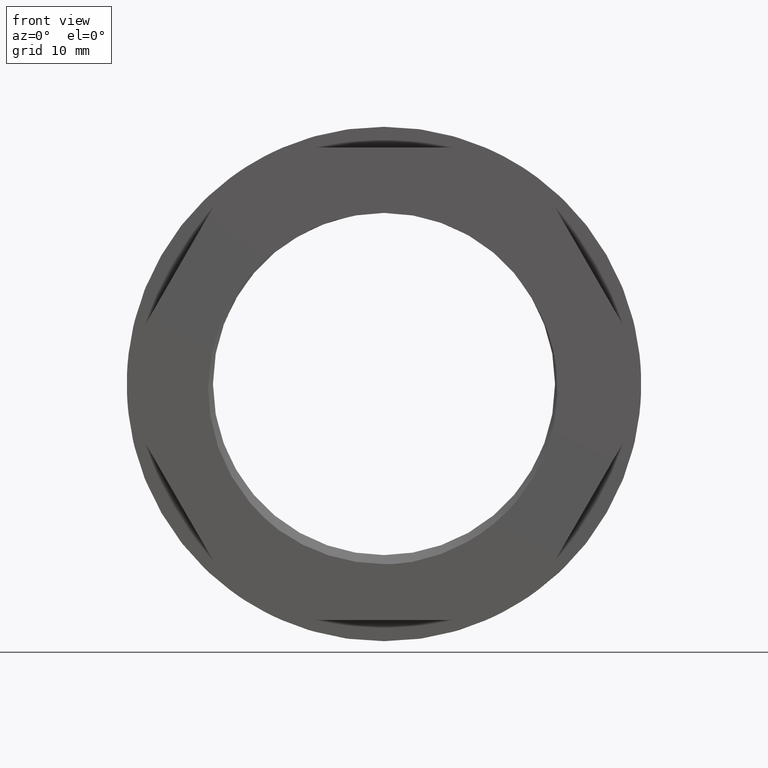
[diagram: clean part render]
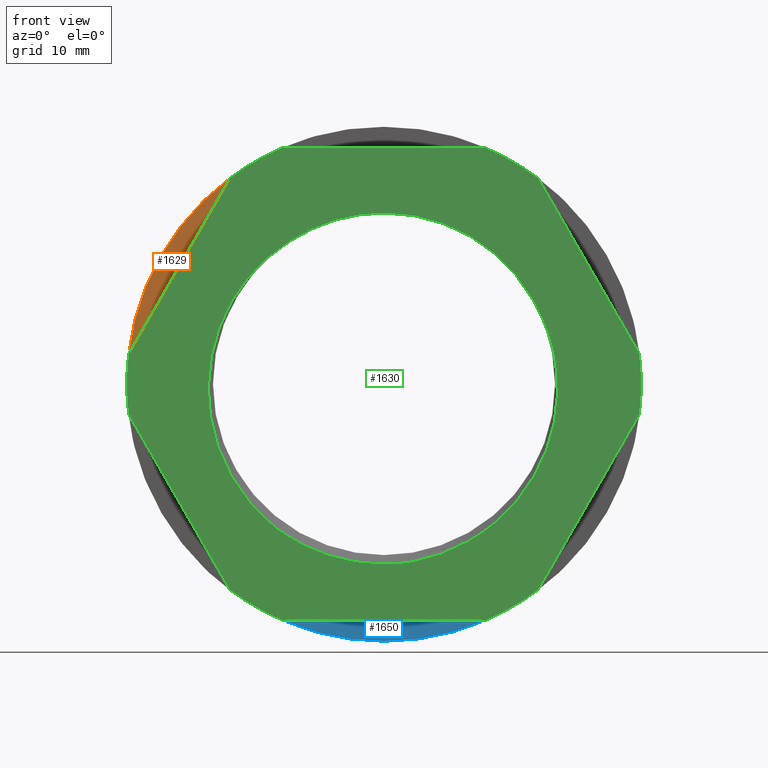
[diagram: same view with three faces highlighted in distinct colors, each labeled with its STEP entity id]
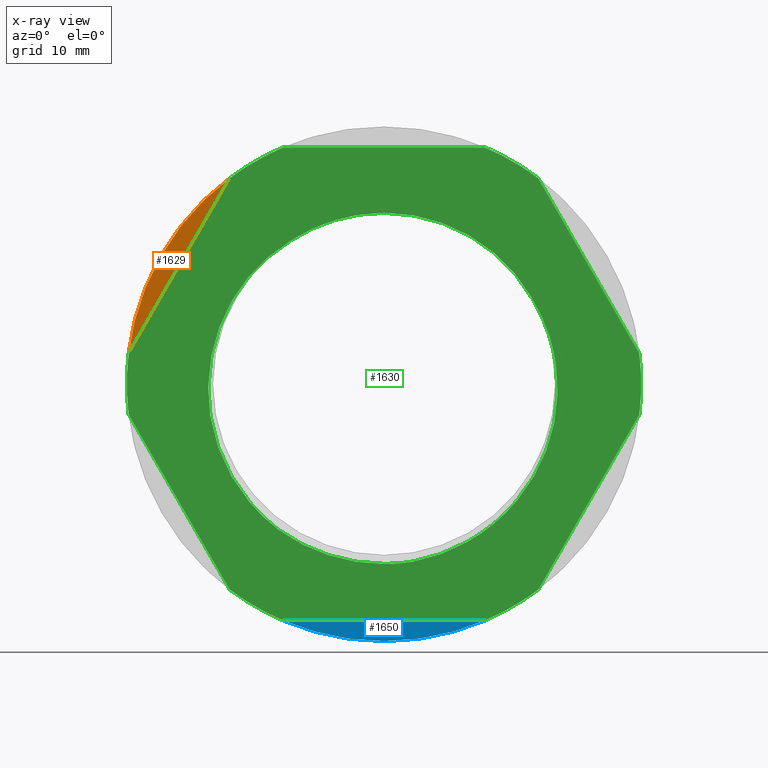
[diagram: x-ray of the same camera — body ghosted, the three highlighted faces saturated]
A machine part, front view with three faces highlighted in distinct colors.
The next image is the same camera in x-ray (body ghosted, the three faces saturated) — at least one of them is partly hidden behind the body in this view.
Their STEP definitions:

[orange] entity #1629 — the highlighted planar face has unit normal (0, 1, 0).
#19 = CARTESIAN_POINT ( 'NONE',  ( -22.68993497167885600, -16.80000000000000100, 102.6998798086183900 ) ) ;
#53 = CARTESIAN_POINT ( 'NONE',  ( -13.68313198726763200, -16.80000000000000100, 118.3001201913816400 ) ) ;
#295 = VERTEX_POINT ( 'NONE', #19 ) ;
#308 = VERTEX_POINT ( 'NONE', #53 ) ;
#337 = EDGE_LOOP ( 'NONE', ( #510, #542 ) ) ;
#510 = ORIENTED_EDGE ( 'NONE', *, *, #1580, .F. ) ;
#542 = ORIENTED_EDGE ( 'NONE', *, *, #1559, .F. ) ;
#753 = DIRECTION ( 'NONE',  ( 0.0000000000000000000, 0.0000000000000000000, 1.000000000000000000 ) ) ;
#767 = CARTESIAN_POINT ( 'NONE',  ( 0.0000000000000000000, -16.80000000000000100, 100.0000000000000000 ) ) ;
#775 = DIRECTION ( 'NONE',  ( 0.0000000000000000000, 1.000000000000000000, 0.0000000000000000000 ) ) ;
#1061 = CARTESIAN_POINT ( 'NONE',  ( 0.0000000000000000000, -16.80000000000000100, 79.04999999999999700 ) ) ;
#1063 = DIRECTION ( 'NONE',  ( 0.0000000000000000000, -0.0000000000000000000, 1.000000000000000000 ) ) ;
#1071 = FACE_OUTER_BOUND ( 'NONE', #337, .T. ) ;
#1077 = PLANE ( 'NONE',  #1685 ) ;
#1079 = DIRECTION ( 'NONE',  ( 0.0000000000000000000, 1.000000000000000000, 0.0000000000000000000 ) ) ;
#1398 = LINE ( 'NONE', #1402, #1784 ) ;
#1400 = DIRECTION ( 'NONE',  ( -0.4999999999999998900, 0.0000000000000000000, -0.8660254037844387100 ) ) ;
#1402 = CARTESIAN_POINT ( 'NONE',  ( -13.08782040654984200, -16.79999999999999700, 119.3312300955189900 ) ) ;
#1559 = EDGE_CURVE ( 'NONE', #308, #295, #1398, .T. ) ;
#1580 = EDGE_CURVE ( 'NONE', #295, #308, #1780, .T. ) ;
#1629 = ADVANCED_FACE ( 'NONE', ( #1071 ), #1077, .F. ) ;
#1685 = AXIS2_PLACEMENT_3D ( 'NONE', #1061, #1079, #1063 ) ;
#1780 = CIRCLE ( 'NONE', #1790, 22.85000000000000900 ) ;
#1784 = VECTOR ( 'NONE', #1400, 1000.000000000000000 ) ;
#1790 = AXIS2_PLACEMENT_3D ( 'NONE', #767, #775, #753 ) ;

[blue] entity #1650 — the highlighted planar face has unit normal (0, 1, 0).
#12 = CARTESIAN_POINT ( 'NONE',  ( -9.006802984411297800, -16.80000000000000100, 79.00000000000000000 ) ) ;
#79 = CARTESIAN_POINT ( 'NONE',  ( 9.006802984411297800, -16.80000000000000100, 79.00000000000000000 ) ) ;
#109 = CARTESIAN_POINT ( 'NONE',  ( 2.798317936051703500E-015, -16.80000000000000100, 77.14999999999999100 ) ) ;
#149 = DIRECTION ( 'NONE',  ( 1.000000000000000000, 0.0000000000000000000, 0.0000000000000000000 ) ) ;
#162 = LINE ( 'NONE', #187, #1764 ) ;
#187 = CARTESIAN_POINT ( 'NONE',  ( -10.19742614584680500, -16.79999999999999700, 79.00000000000000000 ) ) ;
#283 = VERTEX_POINT ( 'NONE', #12 ) ;
#325 = VERTEX_POINT ( 'NONE', #109 ) ;
#326 = VERTEX_POINT ( 'NONE', #79 ) ;
#345 = EDGE_LOOP ( 'NONE', ( #501, #480, #499 ) ) ;
#480 = ORIENTED_EDGE ( 'NONE', *, *, #1536, .F. ) ;
#499 = ORIENTED_EDGE ( 'NONE', *, *, #1588, .F. ) ;
#501 = ORIENTED_EDGE ( 'NONE', *, *, #1634, .F. ) ;
#811 = CARTESIAN_POINT ( 'NONE',  ( 0.0000000000000000000, -16.80000000000000100, 100.0000000000000000 ) ) ;
#813 = DIRECTION ( 'NONE',  ( 0.0000000000000000000, 0.0000000000000000000, 1.000000000000000000 ) ) ;
#822 = DIRECTION ( 'NONE',  ( 0.0000000000000000000, 1.000000000000000000, 0.0000000000000000000 ) ) ;
#1097 = CARTESIAN_POINT ( 'NONE',  ( 0.0000000000000000000, -16.80000000000000100, 100.0000000000000000 ) ) ;
#1111 = DIRECTION ( 'NONE',  ( 0.0000000000000000000, 0.0000000000000000000, 1.000000000000000000 ) ) ;
#1112 = DIRECTION ( 'NONE',  ( 0.0000000000000000000, 1.000000000000000000, 0.0000000000000000000 ) ) ;
#1181 = DIRECTION ( 'NONE',  ( 0.0000000000000000000, -0.0000000000000000000, 1.000000000000000000 ) ) ;
#1184 = FACE_OUTER_BOUND ( 'NONE', #345, .T. ) ;
#1190 = DIRECTION ( 'NONE',  ( 0.0000000000000000000, 1.000000000000000000, 0.0000000000000000000 ) ) ;
#1194 = CARTESIAN_POINT ( 'NONE',  ( 0.0000000000000000000, -16.80000000000000100, 79.04999999999999700 ) ) ;
#1195 = PLANE ( 'NONE',  #1710 ) ;
#1536 = EDGE_CURVE ( 'NONE', #283, #326, #162, .T. ) ;
#1588 = EDGE_CURVE ( 'NONE', #325, #283, #1797, .T. ) ;
#1634 = EDGE_CURVE ( 'NONE', #326, #325, #1691, .T. ) ;
#1650 = ADVANCED_FACE ( 'NONE', ( #1184 ), #1195, .F. ) ;
#1683 = AXIS2_PLACEMENT_3D ( 'NONE', #1097, #1112, #1111 ) ;
#1691 = CIRCLE ( 'NONE', #1683, 22.85000000000000900 ) ;
#1710 = AXIS2_PLACEMENT_3D ( 'NONE', #1194, #1190, #1181 ) ;
#1764 = VECTOR ( 'NONE', #149, 1000.000000000000000 ) ;
#1797 = CIRCLE ( 'NONE', #1800, 22.85000000000000900 ) ;
#1800 = AXIS2_PLACEMENT_3D ( 'NONE', #811, #822, #813 ) ;

[green] entity #1630 — the highlighted planar face has unit normal (0, 1, 0).
#9 = CARTESIAN_POINT ( 'NONE',  ( 22.68993497167886600, -21.80000000000000100, 102.6998798086182900 ) ) ;
#13 = CARTESIAN_POINT ( 'NONE',  ( -9.006802984411297800, -21.80000000000000100, 79.00000000000000000 ) ) ;
#18 = CARTESIAN_POINT ( 'NONE',  ( -9.345540142885060000, -21.80000000000000100, 87.01304964829221000 ) ) ;
#22 = CARTESIAN_POINT ( 'NONE',  ( 13.68313198726753700, -21.80000000000000100, 118.3001201913817100 ) ) ;
#23 = CARTESIAN_POINT ( 'NONE',  ( 22.68993497167887000, -21.80000000000000100, 97.30012019138172300 ) ) ;
#28 = CARTESIAN_POINT ( 'NONE',  ( 1.861463134703977900E-015, -21.80000000000000100, 115.2000000000000200 ) ) ;
#29 = CARTESIAN_POINT ( 'NONE',  ( -22.68993497167885200, -21.80000000000000100, 97.30012019138158100 ) ) ;
#30 = CARTESIAN_POINT ( 'NONE',  ( 13.68313198726754000, -21.80000000000000100, 81.69987980861830600 ) ) ;
#38 = CARTESIAN_POINT ( 'NONE',  ( -13.68313198726765000, -21.80000000000000100, 81.69987980861837700 ) ) ;
#41 = CARTESIAN_POINT ( 'NONE',  ( -8.280341017782632200, -21.80000000000000100, 112.7466055336009000 ) ) ;
#52 = CARTESIAN_POINT ( 'NONE',  ( 1.959434878635765100E-015, -21.80000000000000100, 84.00000000000000000 ) ) ;
#57 = CARTESIAN_POINT ( 'NONE',  ( 9.006802984411331500, -21.80000000000000100, 121.0000000000000000 ) ) ;
#58 = CARTESIAN_POINT ( 'NONE',  ( 2.559201226149841400, -21.80000000000000100, 84.20599831948619900 ) ) ;
#59 = CARTESIAN_POINT ( 'NONE',  ( 9.006802984411297800, -21.80000000000000100, 79.00000000000000000 ) ) ;
#63 = CARTESIAN_POINT ( 'NONE',  ( 13.22892858177964300, -21.80000000000000100, 107.4856829066007000 ) ) ;
#78 = CARTESIAN_POINT ( 'NONE',  ( -9.006802984411331500, -21.80000000000000100, 121.0000000000000000 ) ) ;
#90 = CARTESIAN_POINT ( 'NONE',  ( -22.68993497167885900, -21.80000000000000100, 102.6998798086183900 ) ) ;
#97 = CARTESIAN_POINT ( 'NONE',  ( -13.68313198726762700, -21.80000000000000100, 118.3001201913816400 ) ) ;
#156 = DIRECTION ( 'NONE',  ( -1.000000000000000000, 0.0000000000000000000, 0.0000000000000000000 ) ) ;
#177 = LINE ( 'NONE', #184, #1771 ) ;
#184 = CARTESIAN_POINT ( 'NONE',  ( 0.0000000000000000000, -21.80000000000000100, 79.00000000000000000 ) ) ;
#208 = DIRECTION ( 'NONE',  ( 0.0000000000000000000, 1.000000000000000000, 0.0000000000000000000 ) ) ;
#210 = CARTESIAN_POINT ( 'NONE',  ( 0.0000000000000000000, -21.80000000000000100, 100.0000000000000000 ) ) ;
#225 = DIRECTION ( 'NONE',  ( 0.0000000000000000000, 0.0000000000000000000, 1.000000000000000000 ) ) ;
#257 = VERTEX_POINT ( 'NONE', #9 ) ;
#258 = VERTEX_POINT ( 'NONE', #23 ) ;
#263 = VERTEX_POINT ( 'NONE', #29 ) ;
#274 = VERTEX_POINT ( 'NONE', #52 ) ;
#275 = VERTEX_POINT ( 'NONE', #58 ) ;
#281 = VERTEX_POINT ( 'NONE', #59 ) ;
#288 = VERTEX_POINT ( 'NONE', #28 ) ;
#289 = VERTEX_POINT ( 'NONE', #30 ) ;
#297 = VERTEX_POINT ( 'NONE', #22 ) ;
#298 = VERTEX_POINT ( 'NONE', #57 ) ;
#303 = VERTEX_POINT ( 'NONE', #63 ) ;
#309 = VERTEX_POINT ( 'NONE', #38 ) ;
#313 = VERTEX_POINT ( 'NONE', #41 ) ;
#315 = VERTEX_POINT ( 'NONE', #18 ) ;
#321 = VERTEX_POINT ( 'NONE', #13 ) ;
#347 = EDGE_LOOP ( 'NONE', ( #571, #558, #550, #567, #552, #554 ) ) ;
#356 = EDGE_LOOP ( 'NONE', ( #507, #582, #561, #508, #579, #559, #553, #563, #583, #569, #568, #566 ) ) ;
#358 = VERTEX_POINT ( 'NONE', #78 ) ;
#366 = VERTEX_POINT ( 'NONE', #97 ) ;
#387 = VERTEX_POINT ( 'NONE', #90 ) ;
#507 = ORIENTED_EDGE ( 'NONE', *, *, #1541, .F. ) ;
#508 = ORIENTED_EDGE ( 'NONE', *, *, #1590, .F. ) ;
#550 = ORIENTED_EDGE ( 'NONE', *, *, #1555, .F. ) ;
#552 = ORIENTED_EDGE ( 'NONE', *, *, #1584, .F. ) ;
#553 = ORIENTED_EDGE ( 'NONE', *, *, #1576, .F. ) ;
#554 = ORIENTED_EDGE ( 'NONE', *, *, #1553, .F. ) ;
#558 = ORIENTED_EDGE ( 'NONE', *, *, #1572, .F. ) ;
#559 = ORIENTED_EDGE ( 'NONE', *, *, #1561, .F. ) ;
#561 = ORIENTED_EDGE ( 'NONE', *, *, #1657, .F. ) ;
#563 = ORIENTED_EDGE ( 'NONE', *, *, #1587, .F. ) ;
#566 = ORIENTED_EDGE ( 'NONE', *, *, #1534, .F. ) ;
#567 = ORIENTED_EDGE ( 'NONE', *, *, #1578, .F. ) ;
#568 = ORIENTED_EDGE ( 'NONE', *, *, #1582, .F. ) ;
#569 = ORIENTED_EDGE ( 'NONE', *, *, #1565, .F. ) ;
#571 = ORIENTED_EDGE ( 'NONE', *, *, #1581, .F. ) ;
#579 = ORIENTED_EDGE ( 'NONE', *, *, #1666, .F. ) ;
#582 = ORIENTED_EDGE ( 'NONE', *, *, #1567, .F. ) ;
#583 = ORIENTED_EDGE ( 'NONE', *, *, #1583, .F. ) ;
#638 = LINE ( 'NONE', #643, #1785 ) ;
#643 = CARTESIAN_POINT ( 'NONE',  ( -11.25833024919774100, -21.80000000000000100, 77.49999999999998600 ) ) ;
#647 = DIRECTION ( 'NONE',  ( -0.4999999999999998900, 0.0000000000000000000, -0.8660254037844387100 ) ) ;
#648 = CARTESIAN_POINT ( 'NONE',  ( 11.25833024919769600, -21.80000000000000100, 77.50000000000001400 ) ) ;
#649 = DIRECTION ( 'NONE',  ( 1.000000000000000000, 0.0000000000000000000, 0.0000000000000000000 ) ) ;
#656 = DIRECTION ( 'NONE',  ( -0.4999999999999998900, 0.0000000000000000000, 0.8660254037844387100 ) ) ;
#657 = LINE ( 'NONE', #648, #1778 ) ;
#673 = CARTESIAN_POINT ( 'NONE',  ( 5.847603803097159800, -21.79999999999999400, 85.20044395631022400 ) ) ;
#674 = CARTESIAN_POINT ( 'NONE',  ( 13.41299653549577200, -21.79999999999999700, 91.95798388505028200 ) ) ;
#675 = DIRECTION ( 'NONE',  ( 0.0000000000000000000, 1.000000000000000000, 0.0000000000000000000 ) ) ;
#677 = DIRECTION ( 'NONE',  ( 0.0000000000000000000, 0.0000000000000000000, 1.000000000000000000 ) ) ;
#678 = CARTESIAN_POINT ( 'NONE',  ( 14.89665238248255400, -21.80000000000000400, 95.39385679611643800 ) ) ;
#679 = CARTESIAN_POINT ( 'NONE',  ( 15.36042174715778000, -21.80000000000001500, 98.18561557258649900 ) ) ;
#680 = CARTESIAN_POINT ( 'NONE',  ( 15.36629890072887500, -21.79999999999999000, 100.9886665220129100 ) ) ;
#681 = CARTESIAN_POINT ( 'NONE',  ( 15.29605402779440800, -21.79999999999999400, 101.6123425591068400 ) ) ;
#682 = CARTESIAN_POINT ( 'NONE',  ( 15.07744996291076100, -21.79999999999999700, 102.8561830221211600 ) ) ;
#684 = CARTESIAN_POINT ( 'NONE',  ( 12.39680812052302800, -21.80000000000000400, 90.37424355381084200 ) ) ;
#685 = CARTESIAN_POINT ( 'NONE',  ( 14.51178307663089500, -21.80000000000000800, 94.20956259781840500 ) ) ;
#686 = CARTESIAN_POINT ( 'NONE',  ( 2.559201226149841400, -21.80000000000000100, 84.20599831948619900 ) ) ;
#687 = CARTESIAN_POINT ( 'NONE',  ( 4.670157131283526800, -21.80000000000001500, 84.75264942446341400 ) ) ;
#688 = CARTESIAN_POINT ( 'NONE',  ( 11.20214069272431000, -21.80000000000000400, 88.93724744723621700 ) ) ;
#689 = CARTESIAN_POINT ( 'NONE',  ( 13.71272284038241400, -21.80000000000000100, 92.51197799446616400 ) ) ;
#690 = DIRECTION ( 'NONE',  ( -0.0000000000000000000, -1.000000000000000000, -0.0000000000000000000 ) ) ;
#691 = CARTESIAN_POINT ( 'NONE',  ( 0.0000000000000000000, -21.80000000000000100, 100.0000000000000000 ) ) ;
#697 = CARTESIAN_POINT ( 'NONE',  ( 10.31005880709387600, -21.79999999999999700, 88.05714142112022100 ) ) ;
#700 = CARTESIAN_POINT ( 'NONE',  ( 3.171000923575068700, -21.80000000000000800, 84.32108247000356000 ) ) ;
#702 = CARTESIAN_POINT ( 'NONE',  ( 0.0000000000000000000, -21.80000000000000100, 100.0000000000000000 ) ) ;
#704 = CARTESIAN_POINT ( 'NONE',  ( 4.966541643323145300, -21.79999999999999400, 84.85530378777510000 ) ) ;
#706 = CARTESIAN_POINT ( 'NONE',  ( 8.346612702950521300, -21.80000000000000400, 86.48700167522177700 ) ) ;
#707 = CARTESIAN_POINT ( 'NONE',  ( 9.832289783468805700, -21.79999999999999400, 87.63888032522697800 ) ) ;
#710 = CARTESIAN_POINT ( 'NONE',  ( 11.61928801169434600, -21.80000000000000100, 89.40083283524437300 ) ) ;
#711 = CARTESIAN_POINT ( 'NONE',  ( 12.75718224016328200, -21.79999999999999400, 90.88406780133006200 ) ) ;
#712 = CARTESIAN_POINT ( 'NONE',  ( 3.775252529711438300, -21.80000000000001100, 84.47195218231202300 ) ) ;
#713 = CARTESIAN_POINT ( 'NONE',  ( 13.85339035278449600, -21.79999999999999700, 92.79224502548328200 ) ) ;
#717 = CARTESIAN_POINT ( 'NONE',  ( 15.19668375340737400, -21.79999999999999700, 96.93860792706384200 ) ) ;
#718 = CARTESIAN_POINT ( 'NONE',  ( 15.24747889580607600, -21.80000000000001100, 97.25116820312305800 ) ) ;
#719 = CARTESIAN_POINT ( 'NONE',  ( 15.32922893976606500, -21.80000000000000400, 97.87413876069337000 ) ) ;
#720 = CARTESIAN_POINT ( 'NONE',  ( 15.42548582566163000, -21.80000000000001500, 99.12002107307483800 ) ) ;
#721 = CARTESIAN_POINT ( 'NONE',  ( 15.43094554515690000, -21.79999999999998600, 99.74292491636849400 ) ) ;
#722 = CARTESIAN_POINT ( 'NONE',  ( 14.93117587081897200, -21.80000000000001100, 103.4650878704317000 ) ) ;
#724 = CARTESIAN_POINT ( 'NONE',  ( 5.555389094424178600, -21.79999999999998600, 85.07920472357561400 ) ) ;
#725 = CARTESIAN_POINT ( 'NONE',  ( 7.279047507049273900, -21.79999999999999000, 85.84487963448425800 ) ) ;
#726 = CARTESIAN_POINT ( 'NONE',  ( 13.25411555224310700, -21.79999999999999700, 91.68433683334349400 ) ) ;
#727 = DIRECTION ( 'NONE',  ( 0.0000000000000000000, 0.0000000000000000000, 1.000000000000000000 ) ) ;
#728 = CARTESIAN_POINT ( 'NONE',  ( 14.34998933399079300, -21.79999999999999700, 105.2416855048599200 ) ) ;
#729 = CARTESIAN_POINT ( 'NONE',  ( -15.31616917623194300, -21.80000000000000100, 102.6778086651235800 ) ) ;
#730 = CARTESIAN_POINT ( 'NONE',  ( -15.51749047814093500, -21.80000000000000800, 101.4307799549875600 ) ) ;
#731 = CARTESIAN_POINT ( 'NONE',  ( -11.23114272937664800, -21.80000000000000100, 88.69473202110813800 ) ) ;
#732 = CARTESIAN_POINT ( 'NONE',  ( -15.53775162810182500, -21.79999999999999400, 97.97188838102506700 ) ) ;
#733 = CARTESIAN_POINT ( 'NONE',  ( -13.53859052656114100, -21.80000000000000400, 91.68371650902676600 ) ) ;
#734 = CARTESIAN_POINT ( 'NONE',  ( -14.15524959626258200, -21.80000000000000100, 106.2810027701371900 ) ) ;
#735 = CARTESIAN_POINT ( 'NONE',  ( -15.03775636045023000, -21.80000000000001500, 95.17314932082672400 ) ) ;
#736 = CARTESIAN_POINT ( 'NONE',  ( 13.54484013030601400, -21.79999999999999700, 106.9394409011636500 ) ) ;
#737 = CARTESIAN_POINT ( 'NONE',  ( 13.22892858177964300, -21.80000000000000100, 107.4856829066007000 ) ) ;
#738 = CARTESIAN_POINT ( 'NONE',  ( -12.65920189298054900, -21.80000000000001500, 108.7109856550094100 ) ) ;
#739 = CARTESIAN_POINT ( 'NONE',  ( -15.17581841202480000, -21.80000000000000100, 103.3025719643627700 ) ) ;
#740 = CARTESIAN_POINT ( 'NONE',  ( -15.50185390066817300, -21.79999999999999400, 97.65450971451710400 ) ) ;
#741 = CARTESIAN_POINT ( 'NONE',  ( -11.65960952539771400, -21.79999999999999700, 89.16146859888098700 ) ) ;
#742 = CARTESIAN_POINT ( 'NONE',  ( -15.61573975898031100, -21.80000000000000100, 98.91985127561393700 ) ) ;
#743 = CARTESIAN_POINT ( 'NONE',  ( 0.0000000000000000000, -21.80000000000000100, 100.0000000000000000 ) ) ;
#744 = CARTESIAN_POINT ( 'NONE',  ( -15.62891895781883300, -21.79999999999999400, 99.54967530128556100 ) ) ;
#745 = CARTESIAN_POINT ( 'NONE',  ( 14.56744977025291900, -21.80000000000000400, 104.6578405952305700 ) ) ;
#747 = CARTESIAN_POINT ( 'NONE',  ( -10.32976823865047300, -21.79999999999999400, 111.2654816585135900 ) ) ;
#748 = CARTESIAN_POINT ( 'NONE',  ( -15.57979598586114100, -21.80000000000000100, 100.8051397334483400 ) ) ;
#749 = DIRECTION ( 'NONE',  ( 0.0000000000000000000, 0.0000000000000000000, 1.000000000000000000 ) ) ;
#751 = CARTESIAN_POINT ( 'NONE',  ( -15.35673890116423100, -21.80000000000000800, 96.71562195732731500 ) ) ;
#754 = CARTESIAN_POINT ( 'NONE',  ( -8.280341017782632200, -21.80000000000000100, 112.7466055336009000 ) ) ;
#755 = CARTESIAN_POINT ( 'NONE',  ( -14.64805018679141600, -21.79999999999999700, 105.1241830266674700 ) ) ;
#756 = CARTESIAN_POINT ( 'NONE',  ( -9.845477153726788400, -21.80000000000063700, 87.39364645003949800 ) ) ;
#757 = CARTESIAN_POINT ( 'NONE',  ( -12.84210425197523800, -21.79999999999998600, 108.4536311036692400 ) ) ;
#758 = CARTESIAN_POINT ( 'NONE',  ( -15.41135419627031100, -21.80000000000000400, 97.02677597360353400 ) ) ;
#760 = CARTESIAN_POINT ( 'NONE',  ( -9.334417788003275300, -21.79999999999999000, 112.0581711807546000 ) ) ;
#761 = CARTESIAN_POINT ( 'NONE',  ( -12.08836492792356200, -21.80000000000001100, 109.4636227038387500 ) ) ;
#762 = CARTESIAN_POINT ( 'NONE',  ( -12.86079007229068500, -21.80000000000000100, 90.62127393598427700 ) ) ;
#763 = CARTESIAN_POINT ( 'NONE',  ( 13.83442390802660800, -21.80000000000000100, 106.3809857841341700 ) ) ;
#764 = CARTESIAN_POINT ( 'NONE',  ( -13.36110790721806700, -21.79999999999999700, 107.6542474301323900 ) ) ;
#765 = CARTESIAN_POINT ( 'NONE',  ( 13.97005180340217700, -21.80000000000000100, 106.0985321979665300 ) ) ;
#766 = CARTESIAN_POINT ( 'NONE',  ( 13.39046188444629400, -21.79999999999999700, 107.2160360834838100 ) ) ;
#768 = CARTESIAN_POINT ( 'NONE',  ( -11.00842298764523400, -21.80000000000001100, 88.46611551488366800 ) ) ;
#769 = CARTESIAN_POINT ( 'NONE',  ( -9.345540142885060000, -21.80000000000000100, 87.01304964829221000 ) ) ;
#770 = CARTESIAN_POINT ( 'NONE',  ( -11.86612627487837600, -21.80000000000001100, 89.40029733891454100 ) ) ;
#771 = LINE ( 'NONE', #792, #1798 ) ;
#772 = CARTESIAN_POINT ( 'NONE',  ( -13.19286877185347300, -21.79999999999998600, 107.9257190426303100 ) ) ;
#774 = CARTESIAN_POINT ( 'NONE',  ( -8.816930401464985000, -21.79999999999949300, 112.4193439740331400 ) ) ;
#777 = CARTESIAN_POINT ( 'NONE',  ( -11.67838403284581300, -21.80000000000000100, 109.9395519831268900 ) ) ;
#778 = CARTESIAN_POINT ( 'NONE',  ( -14.63769383905431500, -21.79999999999999700, 93.98113706334925200 ) ) ;
#779 = CARTESIAN_POINT ( 'NONE',  ( -10.32394189962808200, -21.80000000000001100, 87.80413681158792400 ) ) ;
#781 = CARTESIAN_POINT ( 'NONE',  ( -10.79977689691555300, -21.79999999999999000, 110.8399290351127000 ) ) ;
#782 = DIRECTION ( 'NONE',  ( 0.0000000000000000000, 1.000000000000000000, 0.0000000000000000000 ) ) ;
#792 = CARTESIAN_POINT ( 'NONE',  ( -25.11473670974875100, -21.80000000000000100, 98.50000000000001400 ) ) ;
#797 = DIRECTION ( 'NONE',  ( 0.0000000000000000000, 1.000000000000000000, 0.0000000000000000000 ) ) ;
#798 = DIRECTION ( 'NONE',  ( 0.0000000000000000000, 0.0000000000000000000, 1.000000000000000000 ) ) ;
#801 = DIRECTION ( 'NONE',  ( 0.0000000000000000000, 0.0000000000000000000, 1.000000000000000000 ) ) ;
#802 = DIRECTION ( 'NONE',  ( 0.4999999999999998900, 0.0000000000000000000, -0.8660254037844387100 ) ) ;
#803 = CARTESIAN_POINT ( 'NONE',  ( 0.0000000000000000000, -21.80000000000000100, 100.0000000000000000 ) ) ;
#804 = DIRECTION ( 'NONE',  ( 0.0000000000000000000, 1.000000000000000000, 0.0000000000000000000 ) ) ;
#805 = DIRECTION ( 'NONE',  ( 0.0000000000000000000, 0.0000000000000000000, 1.000000000000000000 ) ) ;
#806 = CARTESIAN_POINT ( 'NONE',  ( 0.0000000000000000000, -21.80000000000000100, 100.0000000000000000 ) ) ;
#807 = DIRECTION ( 'NONE',  ( -0.0000000000000000000, -1.000000000000000000, -0.0000000000000000000 ) ) ;
#815 = DIRECTION ( 'NONE',  ( 0.4999999999999998900, 0.0000000000000000000, 0.8660254037844387100 ) ) ;
#816 = CARTESIAN_POINT ( 'NONE',  ( 25.11473670974870800, -21.80000000000000100, 98.49999999999998600 ) ) ;
#829 = CARTESIAN_POINT ( 'NONE',  ( 0.0000000000000000000, -21.80000000000000100, 100.0000000000000000 ) ) ;
#831 = LINE ( 'NONE', #816, #1801 ) ;
#1053 = FACE_OUTER_BOUND ( 'NONE', #356, .T. ) ;
#1055 = DIRECTION ( 'NONE',  ( 0.0000000000000000000, 1.000000000000000000, 0.0000000000000000000 ) ) ;
#1066 = CARTESIAN_POINT ( 'NONE',  ( 0.0000000000000000000, -21.80000000000000100, 84.00000000000000000 ) ) ;
#1070 = PLANE ( 'NONE',  #1708 ) ;
#1078 = DIRECTION ( 'NONE',  ( 0.0000000000000000000, -0.0000000000000000000, 1.000000000000000000 ) ) ;
#1080 = FACE_BOUND ( 'NONE', #347, .T. ) ;
#1343 = DIRECTION ( 'NONE',  ( 0.0000000000000000000, 1.000000000000000000, 0.0000000000000000000 ) ) ;
#1349 = CARTESIAN_POINT ( 'NONE',  ( 0.0000000000000000000, -21.80000000000000100, 100.0000000000000000 ) ) ;
#1357 = DIRECTION ( 'NONE',  ( 0.0000000000000000000, 0.0000000000000000000, 1.000000000000000000 ) ) ;
#1391 = DIRECTION ( 'NONE',  ( -1.776356839400250500E-015, 0.0000000000000000000, 1.000000000000000000 ) ) ;
#1405 = LINE ( 'NONE', #1406, #1806 ) ;
#1406 = CARTESIAN_POINT ( 'NONE',  ( 0.0000000000000000000, -21.80000000000000100, 121.0000000000000000 ) ) ;
#1408 = CARTESIAN_POINT ( 'NONE',  ( 0.0000000000000000000, -21.80000000000000100, 100.0000000000000000 ) ) ;
#1411 = DIRECTION ( 'NONE',  ( -0.0000000000000000000, -1.000000000000000000, -0.0000000000000000000 ) ) ;
#1412 = DIRECTION ( 'NONE',  ( 0.0000000000000000000, 0.0000000000000000000, 1.000000000000000000 ) ) ;
#1422 = DIRECTION ( 'NONE',  ( -0.0000000000000000000, -1.000000000000000000, -0.0000000000000000000 ) ) ;
#1423 = CARTESIAN_POINT ( 'NONE',  ( 0.0000000000000000000, -21.80000000000000100, 100.0000000000000000 ) ) ;
#1498 = B_SPLINE_CURVE_WITH_KNOTS ( 'NONE', 3,
 ( #686, #700, #712, #687, #704, #724, #673, #725, #706, #707, #697, #688, #710, #684, #711, #726, #674, #689, #713, #685, #678, #717, #718, #719, #679, #720, #721, #680, #681, #682, #722, #745, #728, #765, #763, #736, #766, #737 ),
 .UNSPECIFIED., .F., .F.,
 ( 4, 2, 2, 2, 2, 2, 2, 2, 2, 2, 2, 2, 2, 2, 2, 2, 2, 2, 4 ),
 ( 0.1374791443678488300, 0.1393685538336983700, 0.1403132585666231300, 0.1412579632995478700, 0.1450367822312468900, 0.1469261916970964200, 0.1488156011629459500, 0.1507050106287954600, 0.1516497153617202000, 0.1525944200946449400, 0.1563732390263438700, 0.1573179437592686100, 0.1582626484921933500, 0.1601520579580428000, 0.1620414674238922800, 0.1639308768897417300, 0.1658202863555912100, 0.1667649910885159200, 0.1677096958214406600 ),
 .UNSPECIFIED. ) ;
#1504 = B_SPLINE_CURVE_WITH_KNOTS ( 'NONE', 3,
 ( #754, #774, #760, #747, #781, #777, #761, #738, #757, #772, #764, #734, #755, #739, #729, #730, #748, #744, #742, #732, #740, #758, #751, #735, #778, #733, #762, #770, #741, #731, #768, #779, #756, #769 ),
 .UNSPECIFIED., .F., .F.,
 ( 4, 2, 2, 2, 2, 2, 2, 2, 2, 2, 2, 2, 2, 2, 2, 2, 4 ),
 ( 0.1058128360603161500, 0.1077215556169470000, 0.1096302751735778600, 0.1115389947302087200, 0.1124933545085241400, 0.1134477142868395700, 0.1172651534001013100, 0.1191738729567321800, 0.1210825925133630600, 0.1229913120699939300, 0.1239456718483093500, 0.1249000316266247600, 0.1287174707398863200, 0.1325349098531479200, 0.1334892696314633200, 0.1344436294097787500, 0.1363523489664096000 ),
 .UNSPECIFIED. ) ;
#1534 = EDGE_CURVE ( 'NONE', #281, #321, #177, .T. ) ;
#1541 = EDGE_CURVE ( 'NONE', #289, #281, #1752, .T. ) ;
#1553 = EDGE_CURVE ( 'NONE', #315, #274, #1776, .T. ) ;
#1555 = EDGE_CURVE ( 'NONE', #303, #288, #1815, .T. ) ;
#1561 = EDGE_CURVE ( 'NONE', #358, #298, #1405, .T. ) ;
#1565 = EDGE_CURVE ( 'NONE', #309, #263, #638, .T. ) ;
#1567 = EDGE_CURVE ( 'NONE', #258, #289, #657, .T. ) ;
#1572 = EDGE_CURVE ( 'NONE', #288, #313, #1787, .T. ) ;
#1576 = EDGE_CURVE ( 'NONE', #366, #358, #1807, .T. ) ;
#1578 = EDGE_CURVE ( 'NONE', #275, #303, #1498, .T. ) ;
#1581 = EDGE_CURVE ( 'NONE', #313, #315, #1504, .T. ) ;
#1582 = EDGE_CURVE ( 'NONE', #321, #309, #1793, .T. ) ;
#1583 = EDGE_CURVE ( 'NONE', #263, #387, #1774, .T. ) ;
#1584 = EDGE_CURVE ( 'NONE', #274, #275, #1814, .T. ) ;
#1587 = EDGE_CURVE ( 'NONE', #387, #366, #771, .T. ) ;
#1590 = EDGE_CURVE ( 'NONE', #297, #257, #831, .T. ) ;
#1630 = ADVANCED_FACE ( 'NONE', ( #1080, #1053 ), #1070, .F. ) ;
#1657 = EDGE_CURVE ( 'NONE', #257, #258, #1725, .T. ) ;
#1666 = EDGE_CURVE ( 'NONE', #298, #297, #1727, .T. ) ;
#1708 = AXIS2_PLACEMENT_3D ( 'NONE', #1066, #1055, #1078 ) ;
#1724 = AXIS2_PLACEMENT_3D ( 'NONE', #829, #797, #798 ) ;
#1725 = CIRCLE ( 'NONE', #1739, 22.85000000000000900 ) ;
#1727 = CIRCLE ( 'NONE', #1724, 22.85000000000000900 ) ;
#1739 = AXIS2_PLACEMENT_3D ( 'NONE', #1349, #1343, #1357 ) ;
#1752 = CIRCLE ( 'NONE', #1765, 22.85000000000000900 ) ;
#1765 = AXIS2_PLACEMENT_3D ( 'NONE', #210, #208, #225 ) ;
#1771 = VECTOR ( 'NONE', #156, 1000.000000000000000 ) ;
#1774 = CIRCLE ( 'NONE', #1810, 22.85000000000000900 ) ;
#1776 = CIRCLE ( 'NONE', #1808, 16.00000000000000000 ) ;
#1778 = VECTOR ( 'NONE', #647, 1000.000000000000000 ) ;
#1785 = VECTOR ( 'NONE', #656, 1000.000000000000000 ) ;
#1787 = CIRCLE ( 'NONE', #1804, 15.20000000000000500 ) ;
#1791 = AXIS2_PLACEMENT_3D ( 'NONE', #806, #807, #801 ) ;
#1793 = CIRCLE ( 'NONE', #1795, 22.85000000000000900 ) ;
#1794 = AXIS2_PLACEMENT_3D ( 'NONE', #1408, #1422, #1391 ) ;
#1795 = AXIS2_PLACEMENT_3D ( 'NONE', #743, #782, #749 ) ;
#1798 = VECTOR ( 'NONE', #815, 1000.000000000000000 ) ;
#1799 = AXIS2_PLACEMENT_3D ( 'NONE', #702, #675, #727 ) ;
#1801 = VECTOR ( 'NONE', #802, 1000.000000000000000 ) ;
#1804 = AXIS2_PLACEMENT_3D ( 'NONE', #691, #690, #677 ) ;
#1806 = VECTOR ( 'NONE', #649, 1000.000000000000000 ) ;
#1807 = CIRCLE ( 'NONE', #1799, 22.85000000000000900 ) ;
#1808 = AXIS2_PLACEMENT_3D ( 'NONE', #1423, #1411, #1412 ) ;
#1810 = AXIS2_PLACEMENT_3D ( 'NONE', #803, #804, #805 ) ;
#1814 = CIRCLE ( 'NONE', #1791, 16.00000000000000000 ) ;
#1815 = CIRCLE ( 'NONE', #1794, 15.20000000000000500 ) ;